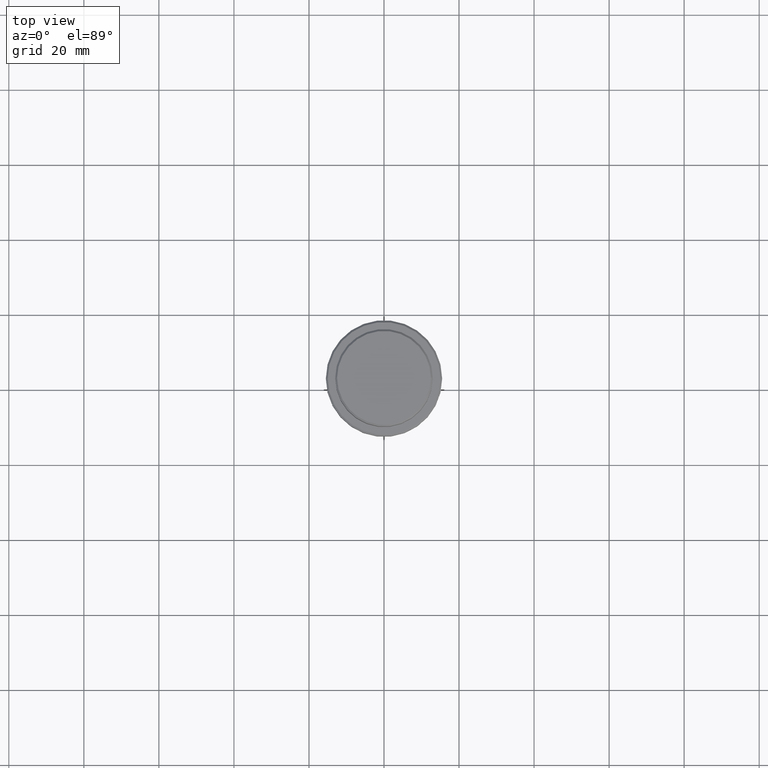
[diagram: clean part render]
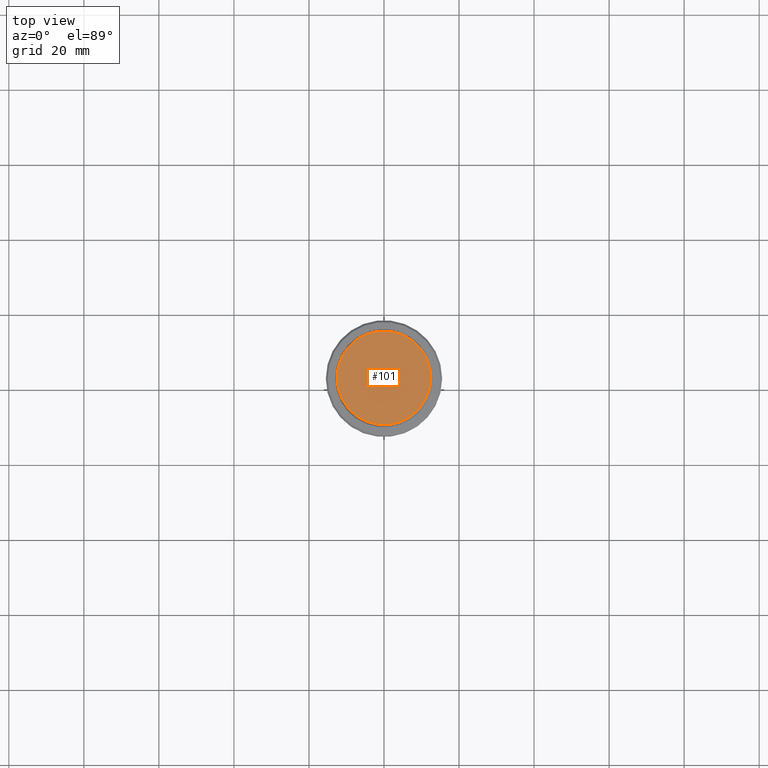
[diagram: same view with one face highlighted and labeled with its STEP entity id]
A machine part, top view. The second image highlights one B-rep face of the part: STEP entity #101.
In plain terms, the highlighted planar face has unit normal (0, -0, 1).
Its self-contained STEP definition (entity closure, byte-faithful):
#101 = ADVANCED_FACE ( 'NONE', ( #307 ), #607, .T. ) ;
#109 = VERTEX_POINT ( 'NONE', #191 ) ;
#139 = ORIENTED_EDGE ( 'NONE', *, *, #205, .T. ) ;
#186 = VERTEX_POINT ( 'NONE', #563 ) ;
#191 = CARTESIAN_POINT ( 'NONE',  ( -12.50000000000004086, 0.000000000000000000, 0.000000000000000000 ) ) ;
#205 = EDGE_CURVE ( 'NONE', #186, #109, #232, .T. ) ;
#219 = DIRECTION ( 'NONE',  ( -0.000000000000000000, -0.000000000000000000, 1.000000000000000000 ) ) ;
#232 = CIRCLE ( 'NONE', #688, 12.50000000000004086 ) ;
#307 = FACE_OUTER_BOUND ( 'NONE', #1010, .T. ) ;
#411 = EDGE_CURVE ( 'NONE', #109, #186, #461, .T. ) ;
#461 = CIRCLE ( 'NONE', #830, 12.50000000000004086 ) ;
#563 = CARTESIAN_POINT ( 'NONE',  ( 12.50000000000004086, 1.561424668912877675E-15, 0.000000000000000000 ) ) ;
#607 = PLANE ( 'NONE',  #1417 ) ;
#688 = AXIS2_PLACEMENT_3D ( 'NONE', #1416, #866, #1295 ) ;
#830 = AXIS2_PLACEMENT_3D ( 'NONE', #855, #219, #960 ) ;
#855 = CARTESIAN_POINT ( 'NONE',  ( 0.000000000000000000, 0.000000000000000000, 0.000000000000000000 ) ) ;
#857 = CARTESIAN_POINT ( 'NONE',  ( 0.000000000000000000, 0.000000000000000000, 0.000000000000000000 ) ) ;
#866 = DIRECTION ( 'NONE',  ( -0.000000000000000000, -0.000000000000000000, 1.000000000000000000 ) ) ;
#960 = DIRECTION ( 'NONE',  ( 1.000000000000000000, 0.000000000000000000, 0.000000000000000000 ) ) ;
#1010 = EDGE_LOOP ( 'NONE', ( #1289, #139 ) ) ;
#1048 = DIRECTION ( 'NONE',  ( 1.000000000000000000, 0.000000000000000000, 0.000000000000000000 ) ) ;
#1289 = ORIENTED_EDGE ( 'NONE', *, *, #411, .T. ) ;
#1290 = DIRECTION ( 'NONE',  ( 0.000000000000000000, -0.000000000000000000, 1.000000000000000000 ) ) ;
#1295 = DIRECTION ( 'NONE',  ( 1.000000000000000000, 0.000000000000000000, 0.000000000000000000 ) ) ;
#1416 = CARTESIAN_POINT ( 'NONE',  ( 0.000000000000000000, 0.000000000000000000, 0.000000000000000000 ) ) ;
#1417 = AXIS2_PLACEMENT_3D ( 'NONE', #857, #1290, #1048 ) ;